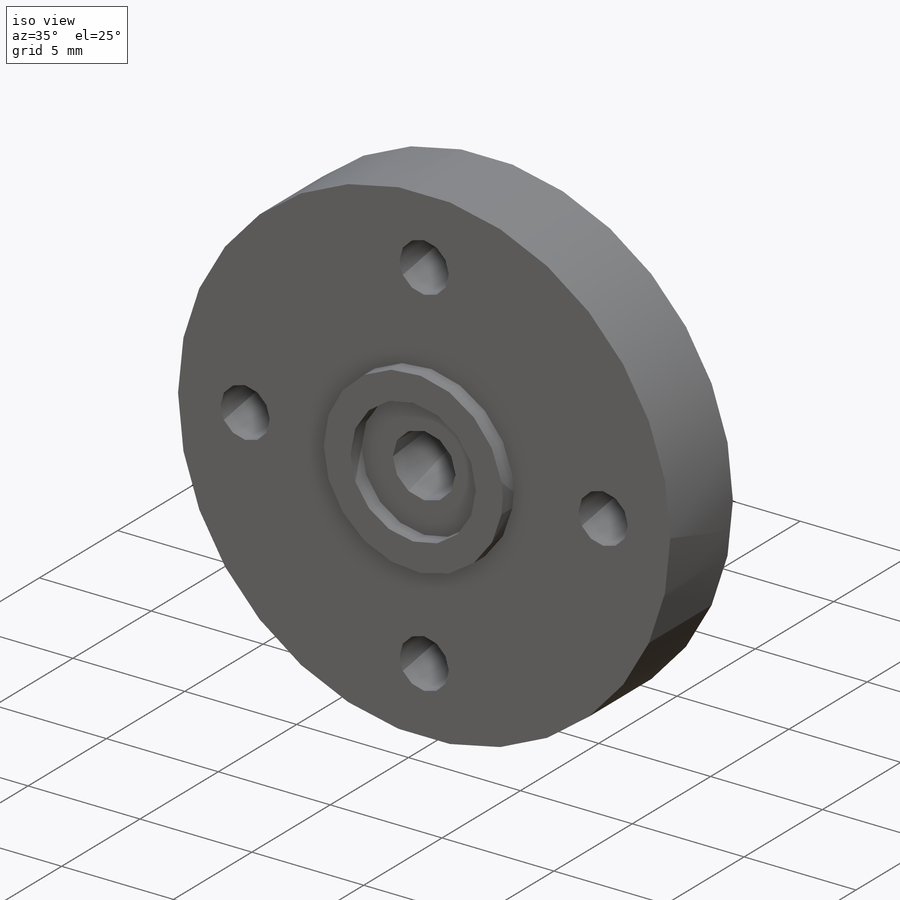
[diagram: iso view]
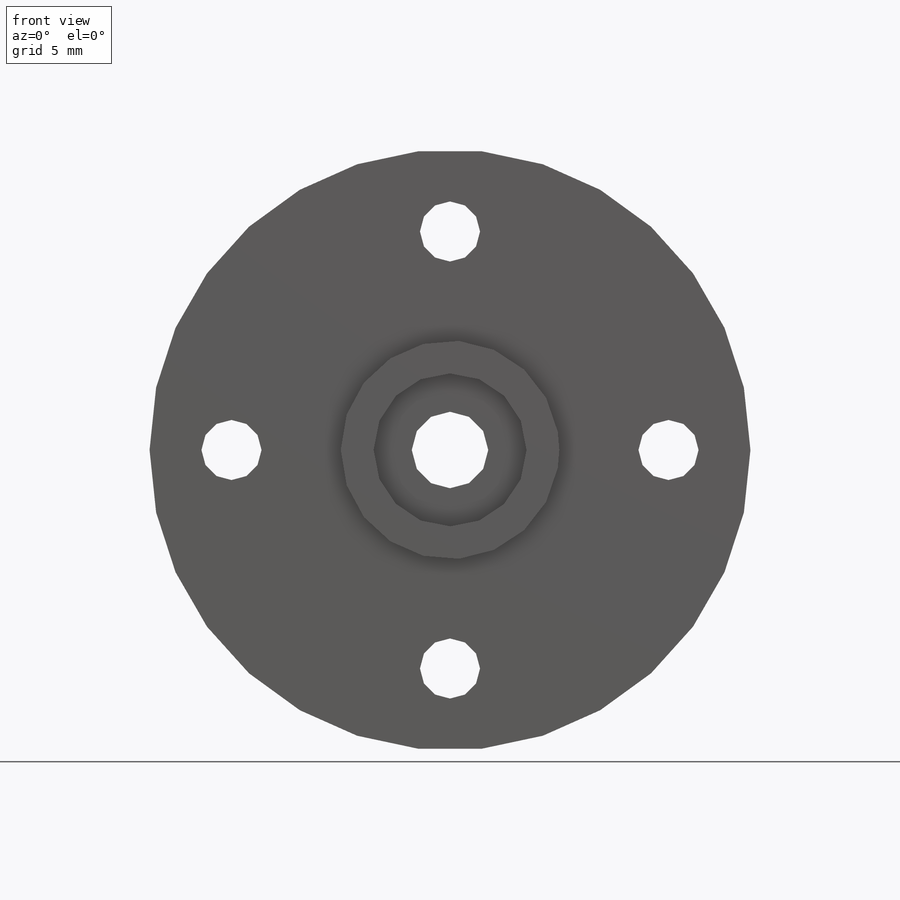
[diagram: front view]
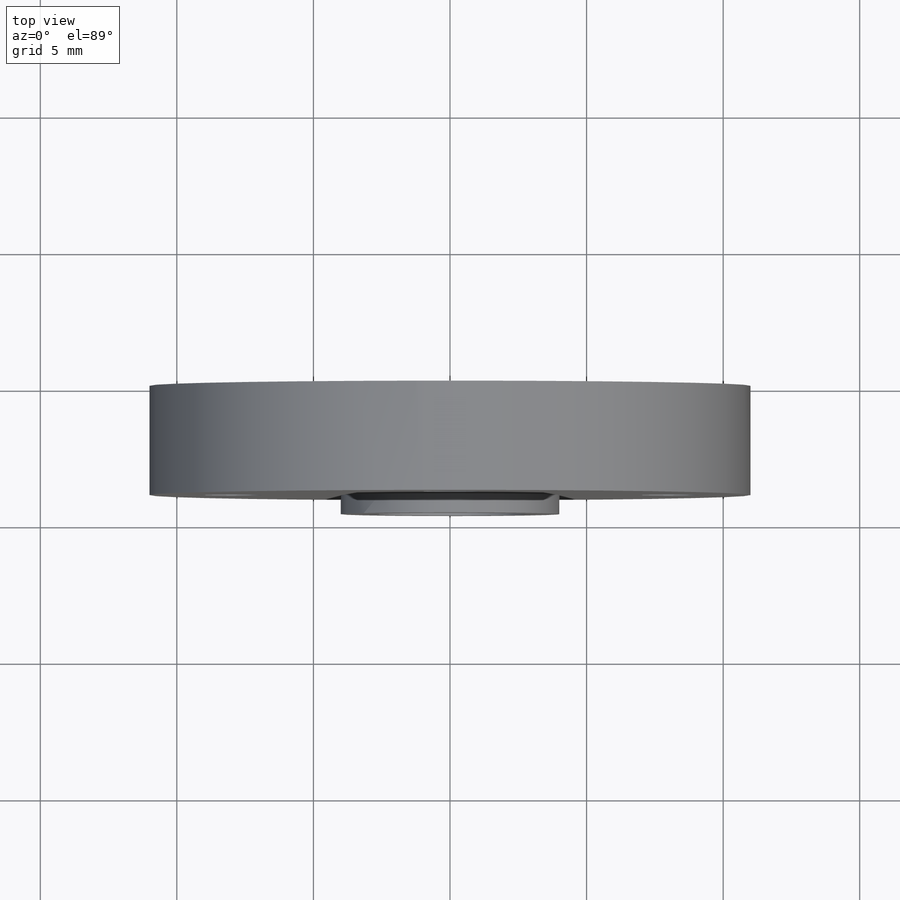
[diagram: top view]
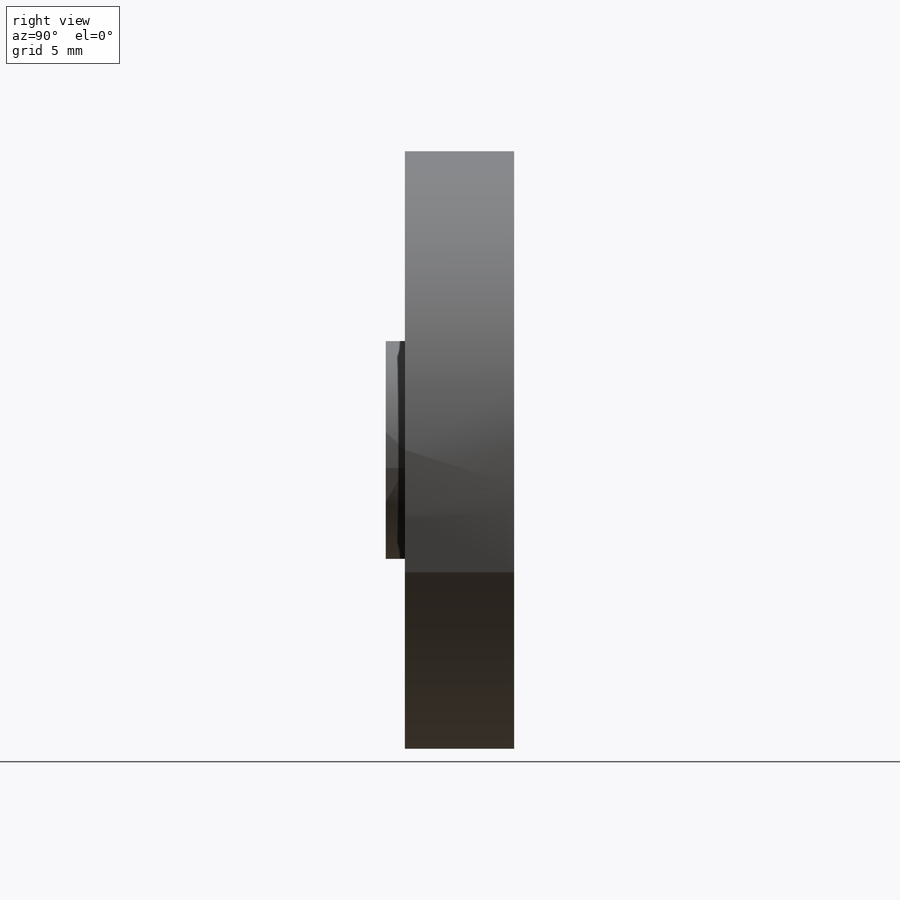
[diagram: right view]
SOLIDWORKS PART (.sldprt)
format: sldprt  version: not decoded by parser v0  size: 163,328 bytes
history: native  units: mm
features: plane x3, sketch x3, extrude x2, material x1, cut_extrude x1 (+11 scaffold rows collapsed)
feature tree (21):
  scaffold x11  (default folders/planes/origin — collapsed)
  material  "Matériau <non spécifié>"
  plane  "Face"
  plane  "Dessus"
  plane  "Droite"
  sketch  "Esquisse1"  dims[c1.D1=22.0mm c1.D2=2.2mm c1.D3=3.5mm c1.D4=3.5mm c1.D5=3.5mm c1.D6=3.5mm c2.D3=8.0mm c2.D4=8.0mm c2.D5=8.0mm c2.D6=8.0mm]
  extrude  "Extrusion1"  Depth=4mm
  sketch  "Esquisse2"  dims[D1=8.0mm D2=5.6mm]
  extrude  "Extrusion3"  Depth=0.7mm
  sketch  "Esquisse3"  dims[D1=2.8mm]
  cut_extrude  "Extrusion4"  [1 undecoded]
decode coverage: 5 of 6 modeling features carry decoded parameters
note: 1 parameter value undecoded
note: suppression state not decoded; provenance and decode notes live in map.json
